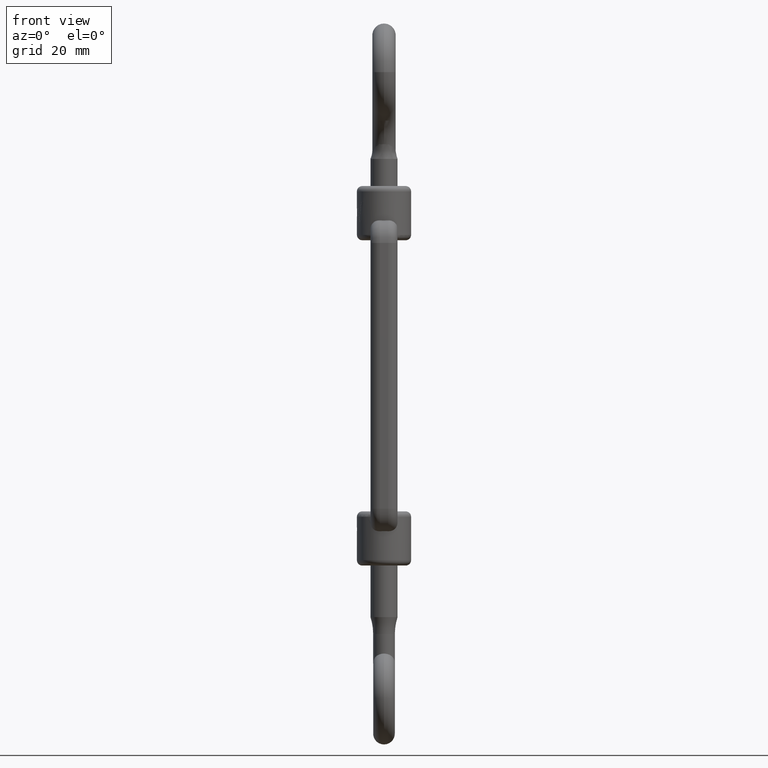
[diagram: clean part render]
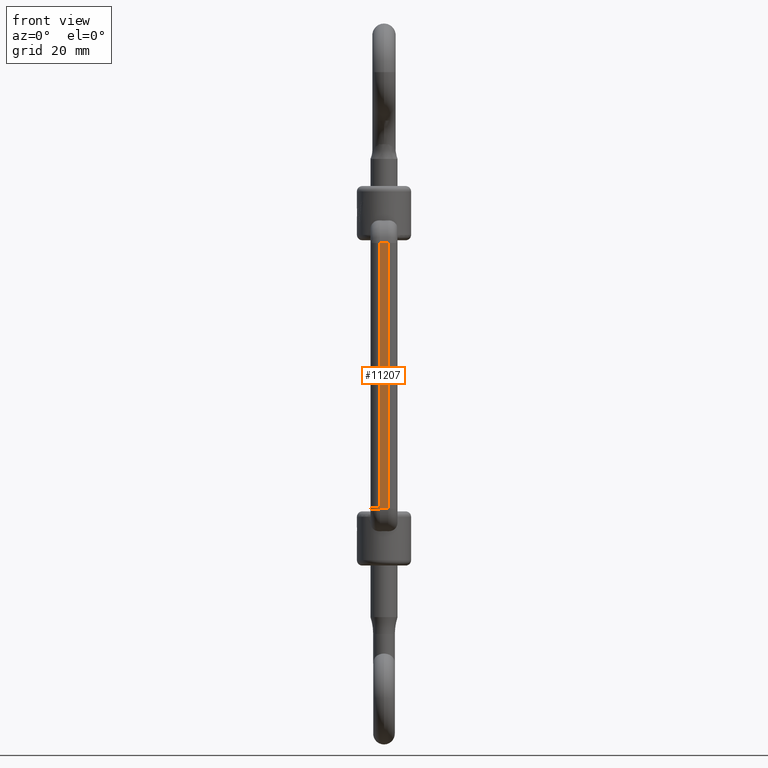
[diagram: same view with one face highlighted and labeled with its STEP entity id]
A machine part, front view. The second image highlights one B-rep face of the part: STEP entity #11207.
In plain terms, the highlighted planar face has unit normal (0, 1, 0).
Its self-contained STEP definition (entity closure, byte-faithful):
#360 = ORIENTED_EDGE ( 'NONE', *, *, #18252, .T. ) ;
#428 = VERTEX_POINT ( 'NONE', #15021 ) ;
#592 = CARTESIAN_POINT ( 'NONE',  ( -0.7499999999999984500, -7.750000000000000000, 24.50000000000001100 ) ) ;
#1179 = VECTOR ( 'NONE', #5433, 1000.000000000000000 ) ;
#1346 = AXIS2_PLACEMENT_3D ( 'NONE', #592, #11115, #2115 ) ;
#1564 = VERTEX_POINT ( 'NONE', #5145 ) ;
#2115 = DIRECTION ( 'NONE',  ( 0.0000000000000000000, -3.540251991789402200E-017, 1.000000000000000000 ) ) ;
#4771 = EDGE_CURVE ( 'NONE', #11844, #13814, #12894, .T. ) ;
#5145 = CARTESIAN_POINT ( 'NONE',  ( -0.7499999999999984500, -7.749999999999998200, -24.49999999999998900 ) ) ;
#5433 = DIRECTION ( 'NONE',  ( 0.0000000000000000000, 3.540251991789402200E-017, -1.000000000000000000 ) ) ;
#5655 = EDGE_CURVE ( 'NONE', #428, #11844, #11722, .T. ) ;
#6561 = LINE ( 'NONE', #11411, #1179 ) ;
#6626 = ORIENTED_EDGE ( 'NONE', *, *, #5655, .F. ) ;
#7246 = VECTOR ( 'NONE', #18287, 1000.000000000000000 ) ;
#7458 = EDGE_LOOP ( 'NONE', ( #6626, #360, #15676, #9973 ) ) ;
#7522 = CARTESIAN_POINT ( 'NONE',  ( 0.7499999999999984500, -7.750000000000000000, 24.50000000000001100 ) ) ;
#7786 = EDGE_CURVE ( 'NONE', #1564, #13814, #11920, .T. ) ;
#8079 = PLANE ( 'NONE',  #1346 ) ;
#9973 = ORIENTED_EDGE ( 'NONE', *, *, #4771, .F. ) ;
#10212 = CARTESIAN_POINT ( 'NONE',  ( -0.7499999999999984500, -7.749999999999998200, -24.49999999999998900 ) ) ;
#11115 = DIRECTION ( 'NONE',  ( -0.0000000000000000000, 1.000000000000000000, 3.540251991789402200E-017 ) ) ;
#11207 = ADVANCED_FACE ( 'NONE', ( #11698 ), #8079, .F. ) ;
#11411 = CARTESIAN_POINT ( 'NONE',  ( -0.7499999999999984500, -7.750000000000000000, 24.50000000000001100 ) ) ;
#11455 = CARTESIAN_POINT ( 'NONE',  ( 0.7499999999999984500, -7.750000000000000000, 24.50000000000001100 ) ) ;
#11698 = FACE_OUTER_BOUND ( 'NONE', #7458, .T. ) ;
#11722 = LINE ( 'NONE', #16774, #7246 ) ;
#11844 = VERTEX_POINT ( 'NONE', #11455 ) ;
#11920 = LINE ( 'NONE', #10212, #17564 ) ;
#12141 = CARTESIAN_POINT ( 'NONE',  ( 0.7499999999999984500, -7.749999999999998200, -24.49999999999998900 ) ) ;
#12894 = LINE ( 'NONE', #7522, #14325 ) ;
#13814 = VERTEX_POINT ( 'NONE', #12141 ) ;
#14325 = VECTOR ( 'NONE', #16333, 1000.000000000000000 ) ;
#15021 = CARTESIAN_POINT ( 'NONE',  ( -0.7499999999999984500, -7.750000000000000000, 24.50000000000001100 ) ) ;
#15676 = ORIENTED_EDGE ( 'NONE', *, *, #7786, .T. ) ;
#16333 = DIRECTION ( 'NONE',  ( 0.0000000000000000000, 3.540251991789402200E-017, -1.000000000000000000 ) ) ;
#16774 = CARTESIAN_POINT ( 'NONE',  ( -0.7499999999999984500, -7.750000000000000000, 24.50000000000001100 ) ) ;
#17564 = VECTOR ( 'NONE', #19121, 1000.000000000000000 ) ;
#18252 = EDGE_CURVE ( 'NONE', #428, #1564, #6561, .T. ) ;
#18287 = DIRECTION ( 'NONE',  ( 1.000000000000000000, 0.0000000000000000000, 0.0000000000000000000 ) ) ;
#19121 = DIRECTION ( 'NONE',  ( 1.000000000000000000, 0.0000000000000000000, 0.0000000000000000000 ) ) ;